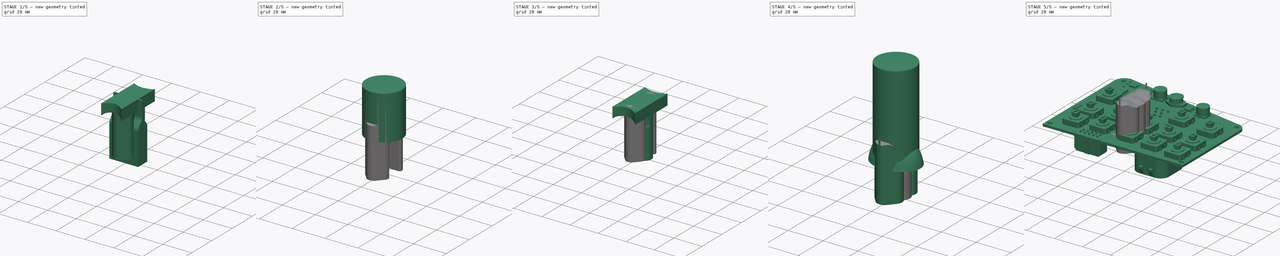
[diagram: build sequence overview — one tinted view per stage of 5, left to right]
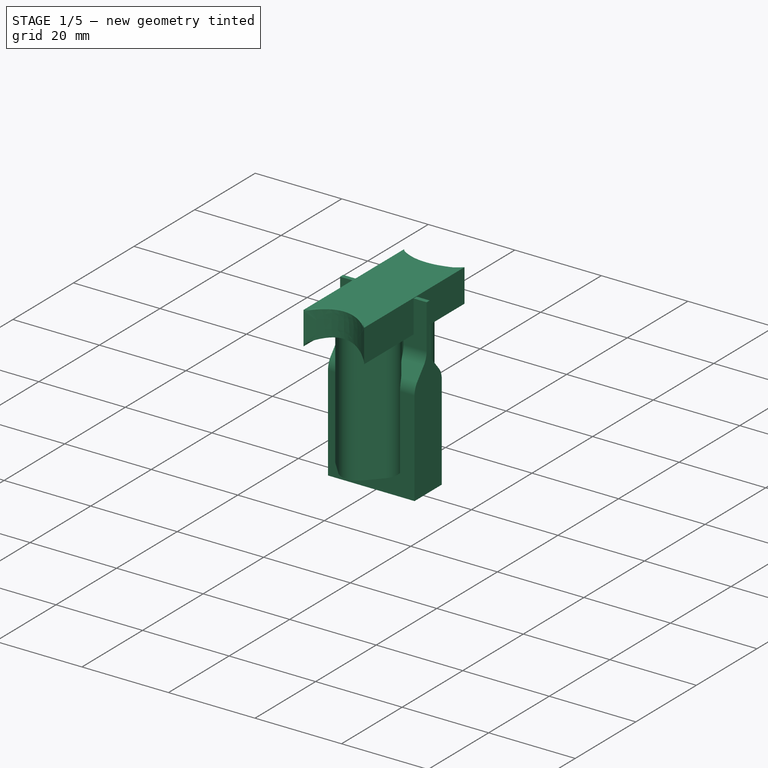
[diagram: stage 1 of 5 — iso view after this stage's code; geometry added in this stage tinted green]
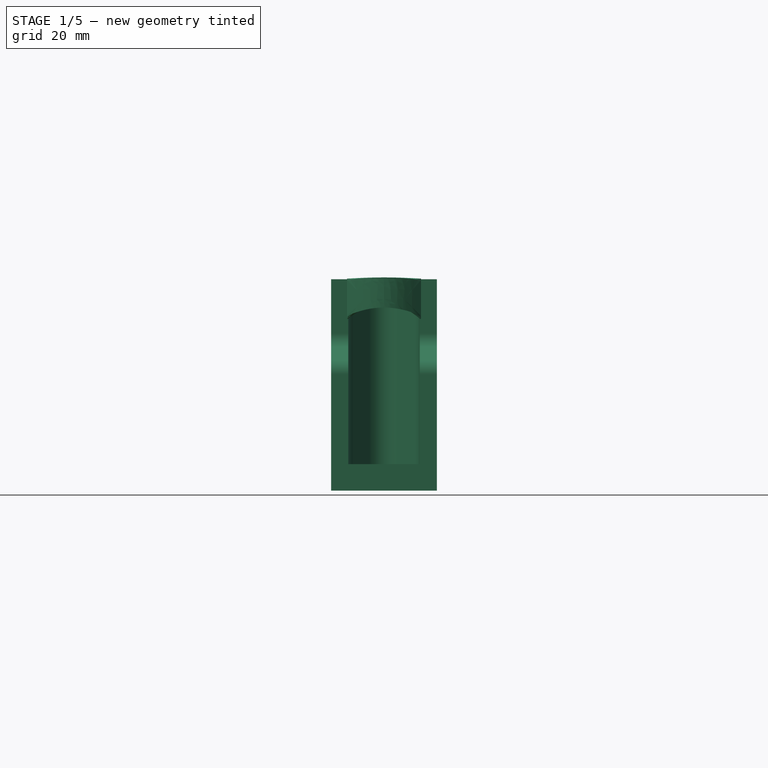
[diagram: stage 1 of 5 — front view after this stage's code; geometry added in this stage tinted green]
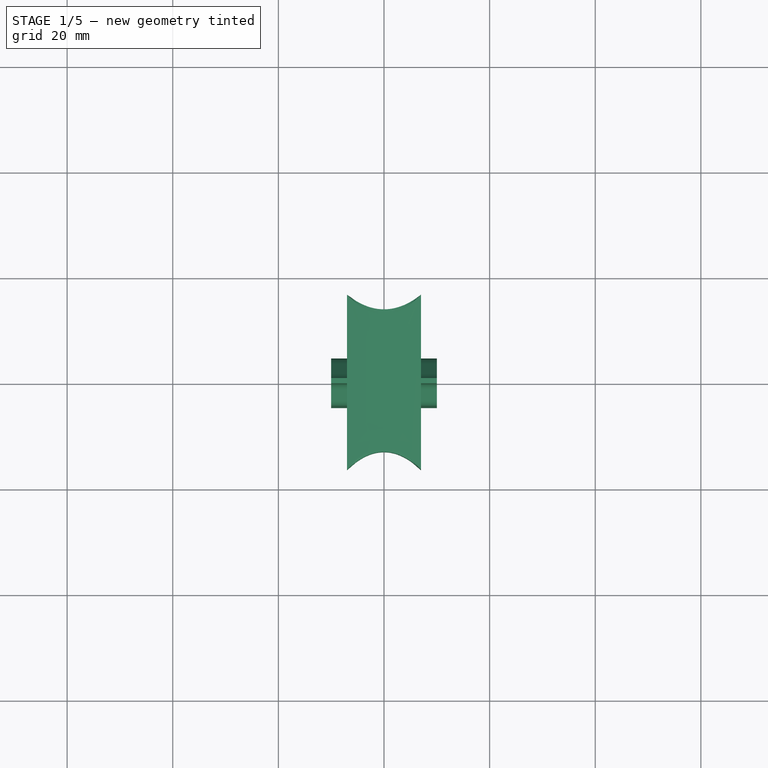
[diagram: stage 1 of 5 — top view after this stage's code; geometry added in this stage tinted green]
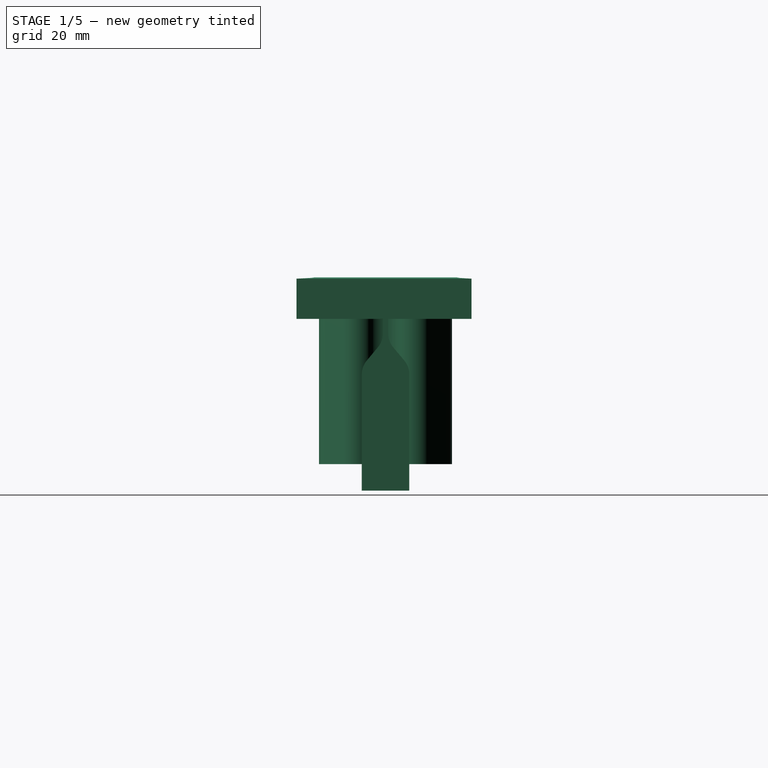
[diagram: stage 1 of 5 — right view after this stage's code; geometry added in this stage tinted green]
FCSTD DOCUMENT  (FreeCAD 0.16R6698 (Git))
Label: button_bases
License: All rights reserved
LicenseURL: http://en.wikipedia.org/wiki/All_rights_reserved
objects: Part::Feature×49, Sketcher::SketchObject×17, Part::Cut×7, PartDesign::Pad×5, Part::Loft×4, Part::Cylinder×2, Part::MultiFuse×1, PartDesign::Mirrored×1, PartDesign::Fillet×1
note: 92 computed .brp shape members not serialized (recipe doc carries the construction recipe); baked Part::Feature solids carry a one-line shape summary decoded from their .brp

FEATURE [Sketcher::SketchObject] Sketch002
  Placement = pos=(0,0,-15) rot=(0,0,1;0rad)
  sketch-geometry (18):
    g0: LineSegment StartX=-2.79667 StartY=11.3496 StartZ=0 EndX=-5.78505 EndY=8.05055 EndZ=0
    g1: LineSegment StartX=-5.94508 StartY=3.09694 StartZ=0 EndX=-5.49789 EndY=2.53417 EndZ=0
    g2: LineSegment StartX=-5.49789 StartY=-2.53417 StartZ=0 EndX=-5.94508 EndY=-3.09694 EndZ=0
    g3: LineSegment StartX=-5.78505 StartY=-8.05055 StartZ=0 EndX=-2.79667 EndY=-11.3496 EndZ=0
    g4: LineSegment StartX=2.79667 StartY=-11.3496 StartZ=0 EndX=5.78505 EndY=-8.05055 EndZ=0
    g5: LineSegment StartX=5.94508 StartY=-3.09694 StartZ=0 EndX=5.49789 EndY=-2.53417 EndZ=0
    g6: LineSegment StartX=5.49789 StartY=2.53417 StartZ=0 EndX=5.94508 EndY=3.09694 EndZ=0
    g7: LineSegment StartX=5.78505 StartY=8.05055 StartZ=0 EndX=2.79667 EndY=11.3496 EndZ=0
    g8: ArcOfCircle CenterX=0 CenterY=8.81623 CenterZ=0 NormalX=0 NormalY=0 NormalZ=1 Radius=3.77348 StartAngle=0.736032 EndAngle=2.40556
    g9: ArcOfCircle CenterX=-2.94671 CenterY=5.47947 CenterZ=0 NormalX=0 NormalY=0 NormalZ=1 Radius=3.8297 StartAngle=2.40556 EndAngle=3.81304
    g10: ArcOfCircle CenterX=-8.6871 CenterY=0 CenterZ=0 NormalX=0 NormalY=0 NormalZ=1 Radius=4.07346 StartAngle=5.61174 EndAngle=6.95463
    g11: ArcOfCircle CenterX=-2.94671 CenterY=-5.47947 CenterZ=0 NormalX=0 NormalY=0 NormalZ=1 Radius=3.8297 StartAngle=2.47015 EndAngle=3.87762
    g12: ArcOfCircle CenterX=0 CenterY=-8.81623 CenterZ=0 NormalX=0 NormalY=0 NormalZ=1 Radius=3.77348 StartAngle=3.87762 EndAngle=5.54715
    g13: ArcOfCircle CenterX=2.94671 CenterY=-5.47947 CenterZ=0 NormalX=0 NormalY=0 NormalZ=1 Radius=3.8297 StartAngle=5.54715 EndAngle=6.95463
    g14: ArcOfCircle CenterX=8.6871 CenterY=0 CenterZ=0 NormalX=0 NormalY=0 NormalZ=1 Radius=4.07346 StartAngle=2.47015 EndAngle=3.81304
    g15: ArcOfCircle CenterX=2.94671 CenterY=5.47947 CenterZ=0 NormalX=0 NormalY=0 NormalZ=1 Radius=3.8297 StartAngle=5.61174 EndAngle=7.01922
    g16: LineSegment [constr] StartX=-13.256 StartY=0 StartZ=0 EndX=12.7685 EndY=0 EndZ=0
    g17: LineSegment [constr] StartX=0 StartY=15.591 StartZ=0 EndX=0 EndY=-15.4292 EndZ=0
  constraints (32):
    c: Tangent(g7,g8) = -1.5708
    c: Tangent(g0,g8) = -1.5708
    c: Tangent(g0,g9) = -1.5708
    c: Tangent(g1,g9) = -1.5708
    c: Tangent(g1,g10) = 1.5708
    c: Tangent(g2,g10) = 1.5708
    c: Tangent(g2,g11) = -1.5708
    c: Tangent(g3,g11) = -1.5708
    c: Tangent(g3,g12) = -1.5708
    c: Tangent(g4,g12) = -1.5708
    c: Tangent(g4,g13) = -1.5708
    c: Tangent(g5,g13) = -1.5708
    c: Tangent(g5,g14) = 1.5708
    c: Tangent(g6,g14) = 1.5708
    c: Tangent(g6,g15) = -1.5708
    c: Tangent(g7,g15) = -1.5708
    c: Equal(g12,g8)
    c: Horizontal(g16)
    c: Vertical(g17)
    c: Symmetric(g12,g8,g16)
    c: PointOnObject(g8,g17)
    c: Symmetric(g11,g13,g17)
    c: Symmetric(g9,g15,g17)
    c: Equal(g9,g11)
    c: Equal(g11,g13)
    c: Equal(g13,g15)
    c: Symmetric(g9,g11,g16)
    c: Symmetric(g14,g10,g17)
    c: PointOnObject(g14,g16)
    c: Equal(g14,g10)
    c: PointOnObject(g17,g-2)
    c: PointOnObject(g16,g-1)
FEATURE [PartDesign::Pad] Pad001
  Length = 35
  Length2 = 100
  Placement = pos=(0,0,-15) rot=(0,0,1;0rad)
  Sketch = -> Sketch002
  Type = 0
FEATURE [Sketcher::SketchObject] Sketch003
  Placement = pos=(0,0,0) rot=(0.57735,0.57735,0.57735;2.0944rad)
  sketch-geometry (10):
    g0: LineSegment StartX=-13.5 StartY=14.6494 StartZ=0 EndX=-13.0769 EndY=14.8919 EndZ=0
    g1: ArcOfCircle CenterX=-9.09897 CenterY=7.95103 CenterZ=0 NormalX=0 NormalY=0 NormalZ=1 Radius=8 StartAngle=1.05514 EndAngle=2.09121
    g2: ArcOfCircle CenterX=0 CenterY=15.4378 CenterZ=0 NormalX=0 NormalY=0 NormalZ=1 Radius=3 StartAngle=4.19673 EndAngle=5.22805
    g3: ArcOfCircle CenterX=9.09897 CenterY=7.95103 CenterZ=0 NormalX=0 NormalY=0 NormalZ=1 Radius=8 StartAngle=1.05038 EndAngle=2.08646
    g4: LineSegment StartX=13.0769 StartY=14.8919 StartZ=0 EndX=13.5 EndY=14.6494 EndZ=0
    g5: LineSegment StartX=13.5 StartY=14.6494 StartZ=0 EndX=13.5 EndY=20.3547 EndZ=0
    g6: LineSegment StartX=13.5 StartY=20.3547 StartZ=0 EndX=-13.5 EndY=20.3547 EndZ=0
    g7: LineSegment StartX=-13.5 StartY=20.3547 StartZ=0 EndX=-13.5 EndY=14.6494 EndZ=0
    g8: LineSegment StartX=-5.15409 StartY=14.9108 StartZ=0 EndX=-1.47933 EndY=12.8279 EndZ=0
    g9: LineSegment StartX=1.47933 StartY=12.8279 StartZ=0 EndX=5.15409 EndY=14.9108 EndZ=0
  constraints (25):
    c: Coincident(g0,g1)
    c: Coincident(g3,g4)
    c: Coincident(g8,g1)
    c: Coincident(g8,g2)
    c: Coincident(g9,g2)
    c: Coincident(g9,g3)
    c: Tangent(g9,g3)
    c: Tangent(g2,g9)
    c: Tangent(g2,g8)
    c: Tangent(g8,g1)
    c: Symmetric(g2,g2,g-2)
    c: Tangent(g0,g1)
    c: Tangent(g3,g4)
    c: Symmetric(g0,g3,g-2)
    c: Coincident(g7,g0)
    c: Coincident(g6,g7)
    c: Horizontal(g6)
    c: Vertical(g7)
    c: Vertical(g5)
    c: Coincident(g5,g6)
    c: Coincident(g5,g4)
    c: Symmetric(g4,g0,g-2)
    c: Radius(g2) = 3
    c: DistanceX(g6,g6) = 27
    c: Radius(g3) = 8
FEATURE [Sketcher::SketchObject] Sketch004
  Placement = pos=(-7,0,0) rot=(0.57735,0.57735,0.57735;2.0944rad)
  sketch-geometry (4):
    g0: LineSegment StartX=-16.8584 StartY=20.1187 StartZ=0 EndX=16.2742 EndY=20.1187 EndZ=0
    g1: LineSegment StartX=16.2742 StartY=20.1187 StartZ=0 EndX=16.2742 EndY=12.5 EndZ=0
    g2: LineSegment StartX=16.2742 StartY=12.5 StartZ=0 EndX=-16.8584 EndY=12.5 EndZ=0
    g3: LineSegment StartX=-16.8584 StartY=12.5 StartZ=0 EndX=-16.8584 EndY=20.1187 EndZ=0
  constraints (11):
    c: Coincident(g0,g1)
    c: Coincident(g1,g2)
    c: Coincident(g2,g3)
    c: Coincident(g3,g0)
    c: Horizontal(g0)
    c: Horizontal(g2)
    c: Vertical(g1)
    c: Vertical(g3)
    c: DistanceX(g0,g0) = 33.1326
    c: DistanceY(g1,g1) = 7.61872
    c: DistanceY(g-1,g2) = 12.5
FEATURE [Sketcher::SketchObject] Sketch005
  Placement = pos=(7,0,0) rot=(0.57735,0.57735,0.57735;2.0944rad)
  sketch-geometry (4):
    g0: LineSegment StartX=-16.8584 StartY=20.1187 StartZ=0 EndX=16.2742 EndY=20.1187 EndZ=0
    g1: LineSegment StartX=16.2742 StartY=20.1187 StartZ=0 EndX=16.2742 EndY=12.5 EndZ=0
    g2: LineSegment StartX=16.2742 StartY=12.5 StartZ=0 EndX=-16.8584 EndY=12.5 EndZ=0
    g3: LineSegment StartX=-16.8584 StartY=12.5 StartZ=0 EndX=-16.8584 EndY=20.1187 EndZ=0
  constraints (11):
    c: Coincident(g0,g1)
    c: Coincident(g1,g2)
    c: Coincident(g2,g3)
    c: Coincident(g3,g0)
    c: Horizontal(g0)
    c: Horizontal(g2)
    c: Vertical(g1)
    c: Vertical(g3)
    c: DistanceX(g0,g0) = 33.1326
    c: DistanceY(g1,g1) = 7.61872
    c: DistanceY(g-1,g2) = 12.5
FEATURE [Part::Loft] Loft
  Closed = false
  Ruled = false
  Sections = -> [Sketch004,Sketch003,Sketch005]
  Solid = true
FEATURE [Sketcher::SketchObject] Sketch
  Placement = pos=(0,0,0) rot=(0.57735,0.57735,0.57735;2.0944rad)
  sketch-geometry (8):
    g0: LineSegment StartX=0 StartY=20 StartZ=0 EndX=-0.5 EndY=20 EndZ=0
    g1: LineSegment StartX=-0.5 StartY=20 StartZ=0 EndX=-0.5 EndY=9.75 EndZ=0
    g2: ArcOfCircle CenterX=-4.59783 CenterY=9.75 CenterZ=0 NormalX=0 NormalY=0 NormalZ=1 Radius=4.09783 StartAngle=5.58505 EndAngle=6.28319
    g3: LineSegment StartX=-1.45871 StartY=7.11597 StartZ=0 EndX=-3.54129 EndY=4.63404 EndZ=0
    g4: ArcOfCircle CenterX=-0.402172 CenterY=2.00001 CenterZ=0 NormalX=0 NormalY=0 NormalZ=1 Radius=4.09783 StartAngle=2.44346 EndAngle=3.1416
    g5: LineSegment StartX=-4.5 StartY=2 StartZ=0 EndX=-4.5 EndY=-20 EndZ=0
    g6: LineSegment StartX=-4.5 StartY=-20 StartZ=0 EndX=0 EndY=-20 EndZ=0
    g7: LineSegment StartX=0 StartY=-20 StartZ=0 EndX=0 EndY=20 EndZ=0
  constraints (24):
    c: PointOnObject(g0,g-2)
    c: Horizontal(g0)
    c: Coincident(g0,g1)
    c: Vertical(g1)
    c: Tangent(g1,g2) = 1.5708
    c: Coincident(g2,g3)
    c: Tangent(g3,g4) = -1.5708
    c: Coincident(g4,g5)
    c: Vertical(g5)
    c: Coincident(g5,g6)
    c: DistanceX(g6,g6) = 4.5
    c: DistanceX(g0,g0) = 0.5
    c: Tangent(g3,g2)
    c: Equal(g4,g2)
    c: Angle(g3) = -2.26893
    c: Tangent(g4,g5)
    c: DistanceY(g4,g1) = 7.75
    c: Horizontal(g6)
    c: DistanceY(g-1,g0) = 20
    c: DistanceY(g-1,g4) = 2
    c: Coincident(g7,g6)
    c: Coincident(g7,g0)
    c: Vertical(g7)
    c: DistanceY(g7,g7) = 40
FEATURE [PartDesign::Pad] Pad
  Length = 20
  Length2 = 100
  Midplane = true
  Placement = pos=(0,0,0) rot=(0.57735,0.57735,0.57735;2.0944rad)
  Sketch = -> Sketch
  Type = 0
FEATURE [PartDesign::Mirrored] Mirrored
  MirrorPlane = -> Sketch [V_Axis]
  Originals = -> [Pad]
  Placement = pos=(0,0,0) rot=(0.57735,0.57735,0.57735;2.0944rad)
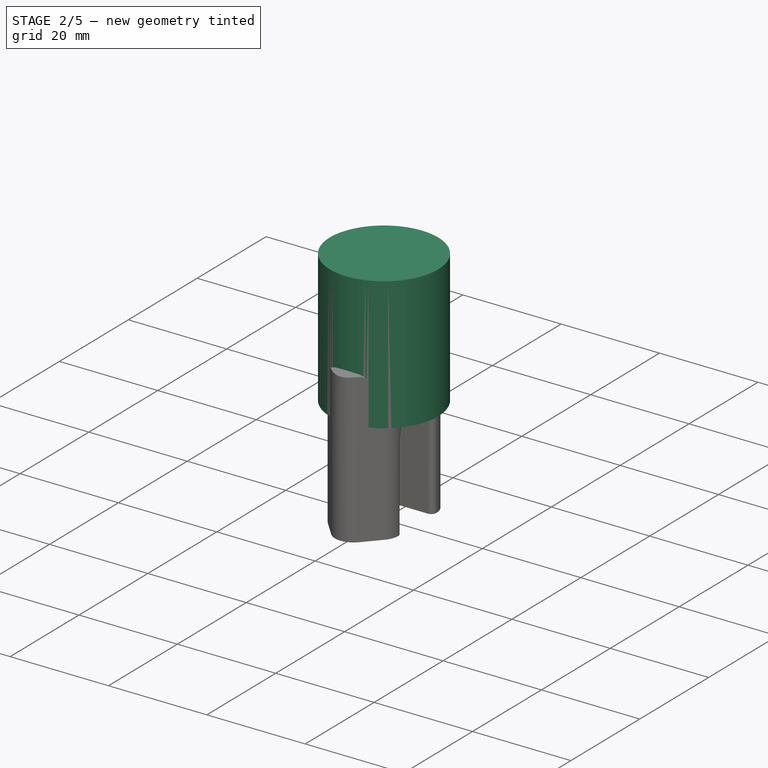
[diagram: stage 2 of 5 — iso view after this stage's code; geometry added in this stage tinted green]
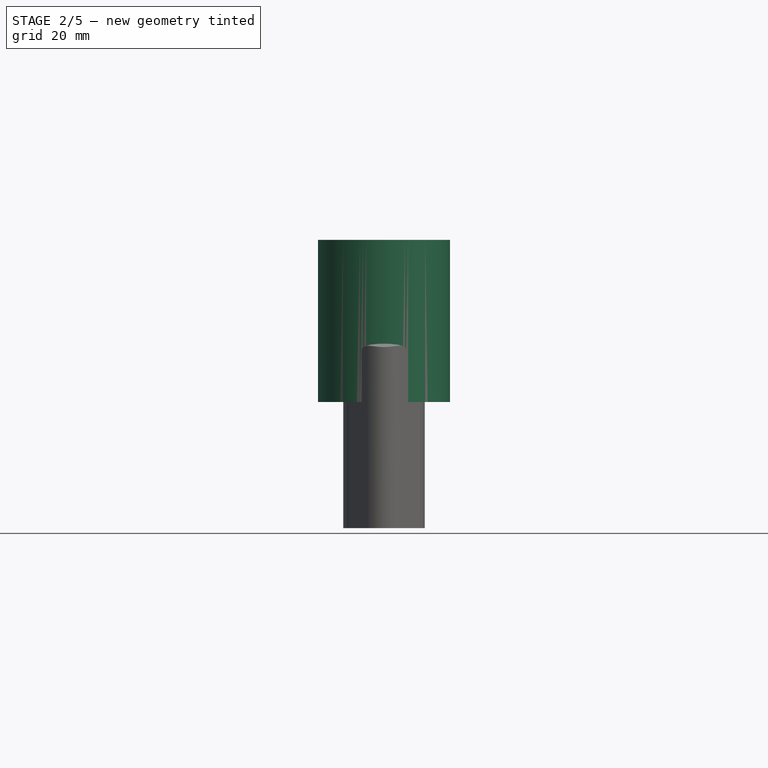
[diagram: stage 2 of 5 — front view after this stage's code; geometry added in this stage tinted green]
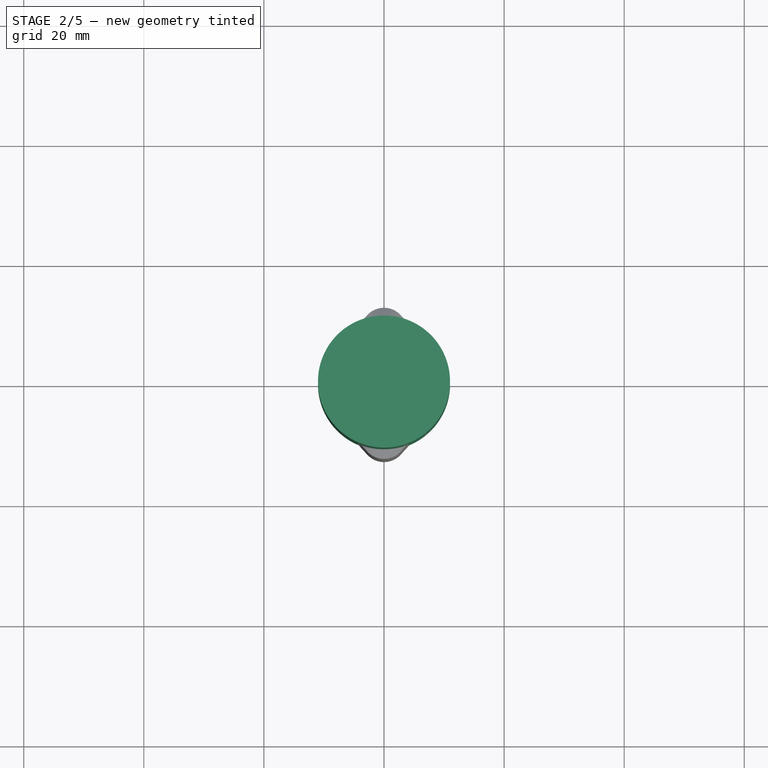
[diagram: stage 2 of 5 — top view after this stage's code; geometry added in this stage tinted green]
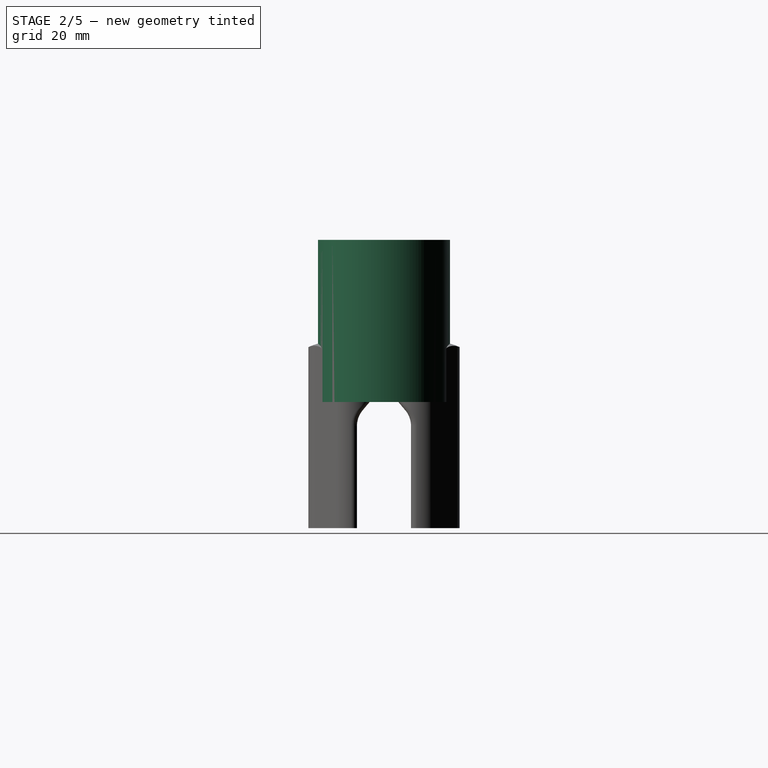
[diagram: stage 2 of 5 — right view after this stage's code; geometry added in this stage tinted green]
FEATURE [Part::Cut] Cut  label="sw_base"
  Base = -> Pad001
  Tool = -> Loft
FEATURE [Part::Cylinder] Cylinder001
  Angle = 360
  Height = 27
  Placement = pos=(0,0,6) rot=(0,0,1;0rad)
  Radius = 11
FEATURE [Part::Cut] Cut007
  Base = -> Cut
  Tool = -> Mirrored
FEATURE [PartDesign::Fillet] Fillet
  Base = -> Cut007 [Edge98,Edge25,Edge29,Edge101]
  Radius = 1
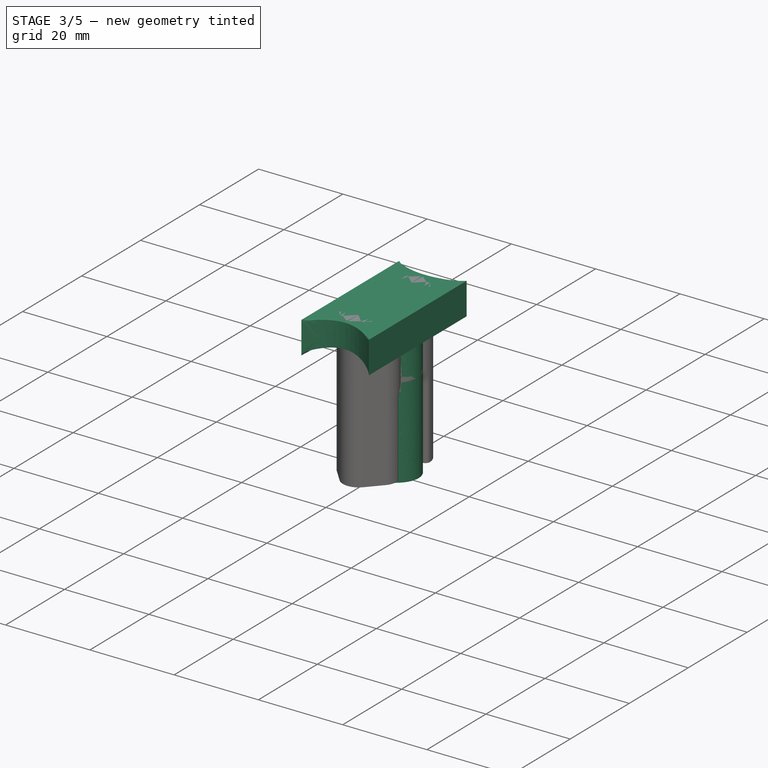
[diagram: stage 3 of 5 — iso view after this stage's code; geometry added in this stage tinted green]
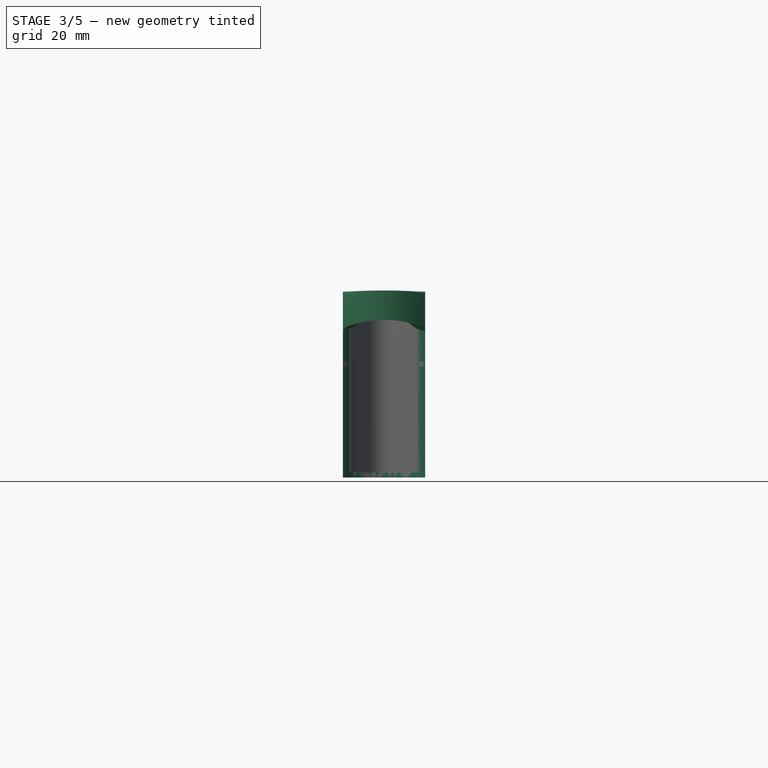
[diagram: stage 3 of 5 — front view after this stage's code; geometry added in this stage tinted green]
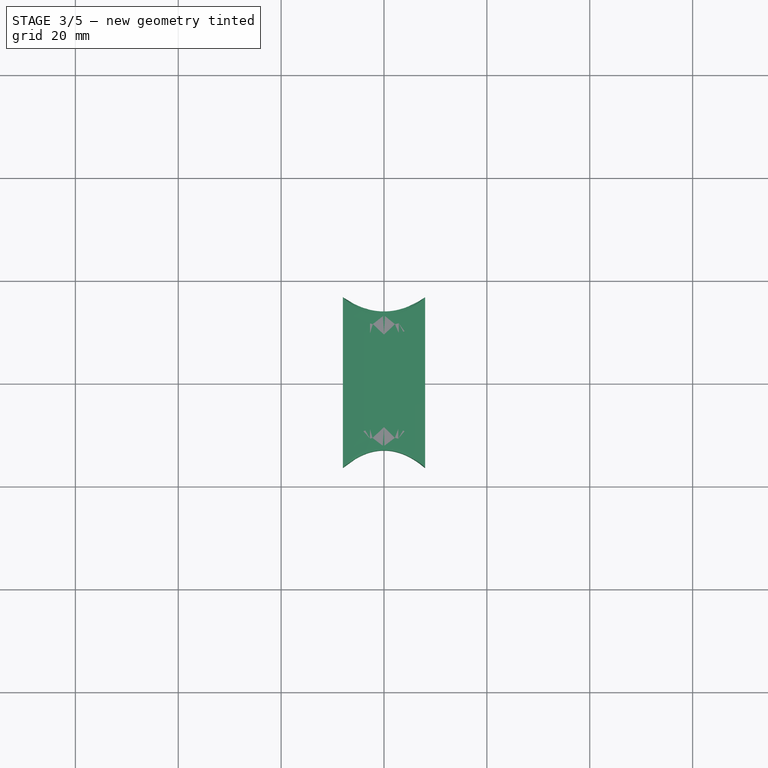
[diagram: stage 3 of 5 — top view after this stage's code; geometry added in this stage tinted green]
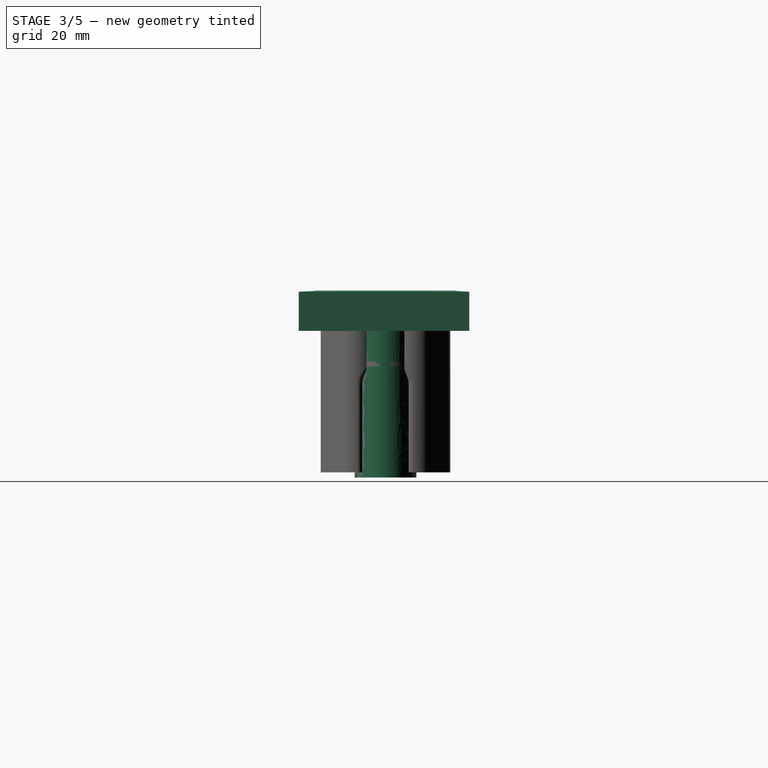
[diagram: stage 3 of 5 — right view after this stage's code; geometry added in this stage tinted green]
FEATURE [Sketcher::SketchObject] Sketch011
  Placement = pos=(0,0,0) rot=(0.57735,0.57735,0.57735;2.0944rad)
  sketch-geometry (10):
    g0: LineSegment StartX=-13.5 StartY=14.6494 StartZ=0 EndX=-13.0769 EndY=14.8919 EndZ=0
    g1: ArcOfCircle CenterX=-9.09897 CenterY=7.95103 CenterZ=0 NormalX=0 NormalY=0 NormalZ=1 Radius=8 StartAngle=1.05514 EndAngle=2.09121
    g2: ArcOfCircle CenterX=0 CenterY=15.4378 CenterZ=0 NormalX=0 NormalY=0 NormalZ=1 Radius=3 StartAngle=4.19673 EndAngle=5.22805
    g3: ArcOfCircle CenterX=9.09897 CenterY=7.95103 CenterZ=0 NormalX=0 NormalY=0 NormalZ=1 Radius=8 StartAngle=1.05038 EndAngle=2.08646
    g4: LineSegment StartX=13.0769 StartY=14.8919 StartZ=0 EndX=13.5 EndY=14.6494 EndZ=0
    g5: LineSegment StartX=13.5 StartY=14.6494 StartZ=0 EndX=13.5 EndY=20.3547 EndZ=0
    g6: LineSegment StartX=13.5 StartY=20.3547 StartZ=0 EndX=-13.5 EndY=20.3547 EndZ=0
    g7: LineSegment StartX=-13.5 StartY=20.3547 StartZ=0 EndX=-13.5 EndY=14.6494 EndZ=0
    g8: LineSegment StartX=-5.15409 StartY=14.9108 StartZ=0 EndX=-1.47933 EndY=12.8279 EndZ=0
    g9: LineSegment StartX=1.47933 StartY=12.8279 StartZ=0 EndX=5.15409 EndY=14.9108 EndZ=0
  constraints (25):
    c: Coincident(g0,g1)
    c: Coincident(g3,g4)
    c: Coincident(g8,g1)
    c: Coincident(g8,g2)
    c: Coincident(g9,g2)
    c: Coincident(g9,g3)
    c: Tangent(g9,g3)
    c: Tangent(g2,g9)
    c: Tangent(g2,g8)
    c: Tangent(g8,g1)
    c: Symmetric(g2,g2,g-2)
    c: Tangent(g0,g1)
    c: Tangent(g3,g4)
    c: Symmetric(g0,g3,g-2)
    c: Coincident(g7,g0)
    c: Coincident(g6,g7)
    c: Horizontal(g6)
    c: Vertical(g7)
    c: Vertical(g5)
    c: Coincident(g5,g6)
    c: Coincident(g5,g4)
    c: Symmetric(g4,g0,g-2)
    c: Radius(g2) = 3
    c: DistanceX(g6,g6) = 27
    c: Radius(g3) = 8
FEATURE [Sketcher::SketchObject] Sketch012
  Placement = pos=(-8,0,0) rot=(0.57735,0.57735,0.57735;2.0944rad)
  sketch-geometry (4):
    g0: LineSegment StartX=-16.8584 StartY=20.1187 StartZ=0 EndX=16.2742 EndY=20.1187 EndZ=0
    g1: LineSegment StartX=16.2742 StartY=20.1187 StartZ=0 EndX=16.2742 EndY=12.5 EndZ=0
    g2: LineSegment StartX=16.2742 StartY=12.5 StartZ=0 EndX=-16.8584 EndY=12.5 EndZ=0
    g3: LineSegment StartX=-16.8584 StartY=12.5 StartZ=0 EndX=-16.8584 EndY=20.1187 EndZ=0
  constraints (11):
    c: Coincident(g0,g1)
    c: Coincident(g1,g2)
    c: Coincident(g2,g3)
    c: Coincident(g3,g0)
    c: Horizontal(g0)
    c: Horizontal(g2)
    c: Vertical(g1)
    c: Vertical(g3)
    c: DistanceX(g0,g0) = 33.1326
    c: DistanceY(g1,g1) = 7.61872
    c: DistanceY(g-1,g2) = 12.5
FEATURE [Sketcher::SketchObject] Sketch013
  Placement = pos=(8,0,0) rot=(0.57735,0.57735,0.57735;2.0944rad)
  sketch-geometry (4):
    g0: LineSegment StartX=-16.8584 StartY=20.1187 StartZ=0 EndX=16.2742 EndY=20.1187 EndZ=0
    g1: LineSegment StartX=16.2742 StartY=20.1187 StartZ=0 EndX=16.2742 EndY=12.5 EndZ=0
    g2: LineSegment StartX=16.2742 StartY=12.5 StartZ=0 EndX=-16.8584 EndY=12.5 EndZ=0
    g3: LineSegment StartX=-16.8584 StartY=12.5 StartZ=0 EndX=-16.8584 EndY=20.1187 EndZ=0
  constraints (11):
    c: Coincident(g0,g1)
    c: Coincident(g1,g2)
    c: Coincident(g2,g3)
    c: Coincident(g3,g0)
    c: Horizontal(g0)
    c: Horizontal(g2)
    c: Vertical(g1)
    c: Vertical(g3)
    c: DistanceX(g0,g0) = 33.1326
    c: DistanceY(g1,g1) = 7.61872
    c: DistanceY(g-1,g2) = 12.5
FEATURE [Part::Loft] Loft002
  Closed = false
  Ruled = false
  Sections = -> [Sketch012,Sketch011,Sketch013]
  Solid = true
FEATURE [Sketcher::SketchObject] Sketch014
  Placement = pos=(0,0,-16) rot=(0,0,1;0rad)
  sketch-geometry (5):
    g0: Ellipse CenterX=0 CenterY=0 CenterZ=0 NormalX=0 NormalY=0 NormalZ=1 MajorRadius=8 MinorRadius=6 AngleXU=0
    g1: LineSegment [constr] StartX=8 StartY=0 StartZ=0 EndX=-8 EndY=0 EndZ=0
    g2: LineSegment [constr] StartX=0 StartY=6 StartZ=0 EndX=0 EndY=-6 EndZ=0
    g3: GeomPoint [constr] X=5.2915 Y=0 Z=0
    g4: GeomPoint [constr] X=-5.2915 Y=0 Z=0
  constraints (5):
    c: InternalAlignment(g1-g4 -> g0) x4
    c: Coincident(g0,g-1)
    c: PointOnObject(g1,g-1)
    c: DistanceX(g1,g1) = 16
    c: DistanceY(g2,g2) = 12
FEATURE [PartDesign::Pad] Pad004
  Length = 40
  Length2 = 100
  Placement = pos=(0,0,-16) rot=(0,0,1;0rad)
  Sketch = -> Sketch014
  Type = 0
FEATURE [Sketcher::SketchObject] Sketch015
  Placement = pos=(0,0,15.2) rot=(0,0,1;0rad)
  sketch-geometry (5):
    g0: Ellipse CenterX=0 CenterY=0 CenterZ=0 NormalX=0 NormalY=0 NormalZ=1 MajorRadius=0.375 MinorRadius=0.25 AngleXU=0
    g1: LineSegment [constr] StartX=0.375 StartY=0 StartZ=0 EndX=-0.375 EndY=0 EndZ=0
    g2: LineSegment [constr] StartX=0 StartY=0.25 StartZ=0 EndX=0 EndY=-0.25 EndZ=0
    g3: GeomPoint [constr] X=0.279508 Y=0 Z=0
    g4: GeomPoint [constr] X=-0.279508 Y=0 Z=0
  constraints (5):
    c: InternalAlignment(g1-g4 -> g0) x4
    c: Coincident(g0,g-1)
    c: PointOnObject(g1,g-1)
    c: DistanceX(g1,g1) = 0.75
    c: DistanceY(g2,g2) = 0.5
FEATURE [Sketcher::SketchObject] Sketch016
  Placement = pos=(0,0,12.2) rot=(0,0,1;0rad)
  sketch-geometry (5):
    g0: Ellipse CenterX=0 CenterY=0 CenterZ=0 NormalX=0 NormalY=0 NormalZ=1 MajorRadius=9 MinorRadius=6 AngleXU=0
    g1: LineSegment [constr] StartX=9 StartY=0 StartZ=0 EndX=-9 EndY=0 EndZ=0
    g2: LineSegment [constr] StartX=0 StartY=6 StartZ=0 EndX=0 EndY=-6 EndZ=0
    g3: GeomPoint [constr] X=6.7082 Y=0 Z=0
    g4: GeomPoint [constr] X=-6.7082 Y=0 Z=0
  constraints (5):
    c: InternalAlignment(g1-g4 -> g0) x4
    c: Coincident(g0,g-1)
    c: PointOnObject(g1,g-1)
    c: DistanceX(g1,g1) = 18
    c: DistanceY(g2,g2) = 12
FEATURE [Sketcher::SketchObject] Sketch017
  Placement = pos=(0,0,1.2) rot=(0,0,1;0rad)
  sketch-geometry (5):
    g0: Ellipse CenterX=0 CenterY=0 CenterZ=0 NormalX=0 NormalY=0 NormalZ=1 MajorRadius=14 MinorRadius=11 AngleXU=0
    g1: LineSegment [constr] StartX=14 StartY=0 StartZ=0 EndX=-14 EndY=0 EndZ=0
    g2: LineSegment [constr] StartX=0 StartY=11 StartZ=0 EndX=0 EndY=-11 EndZ=0
    g3: GeomPoint [constr] X=8.66025 Y=0 Z=0
    g4: GeomPoint [constr] X=-8.66025 Y=0 Z=0
  constraints (5):
    c: InternalAlignment(g1-g4 -> g0) x4
    c: Coincident(g0,g-1)
    c: PointOnObject(g1,g-1)
    c: DistanceX(g1,g1) = 28
    c: DistanceY(g2,g2) = 22
FEATURE [Part::Loft] Loft003
  Closed = false
  Ruled = false
  Sections = -> [Sketch017,Sketch016,Sketch015]
  Solid = true
FEATURE [Part::Cut] Cut005  label="button_cutter001"
  Base = -> Cylinder001
  Tool = -> Loft003
FEATURE [Part::Cut] Cut006  label="but_hole_base"
  Base = -> Pad004
  Tool = -> Cut005
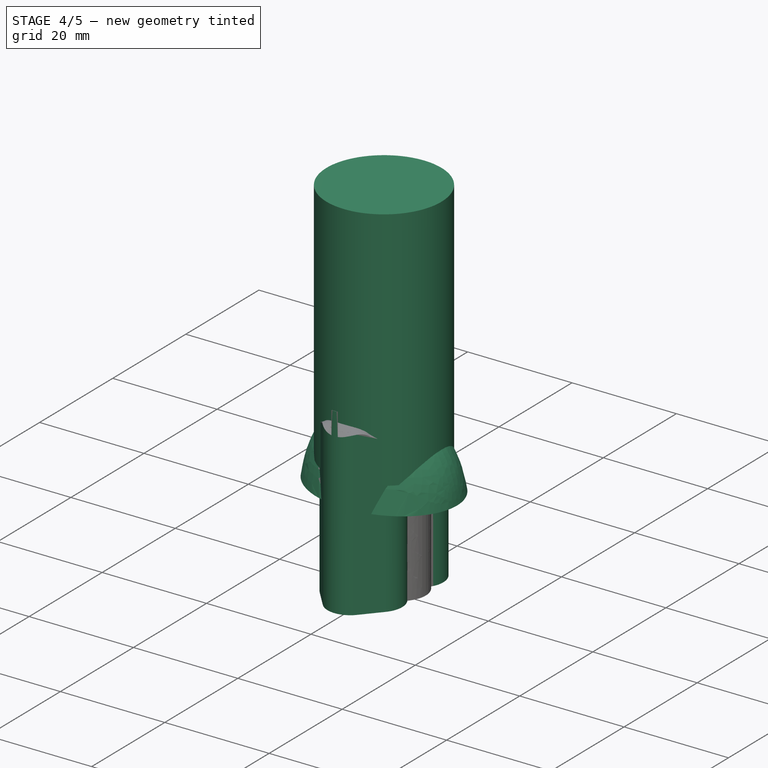
[diagram: stage 4 of 5 — iso view after this stage's code; geometry added in this stage tinted green]
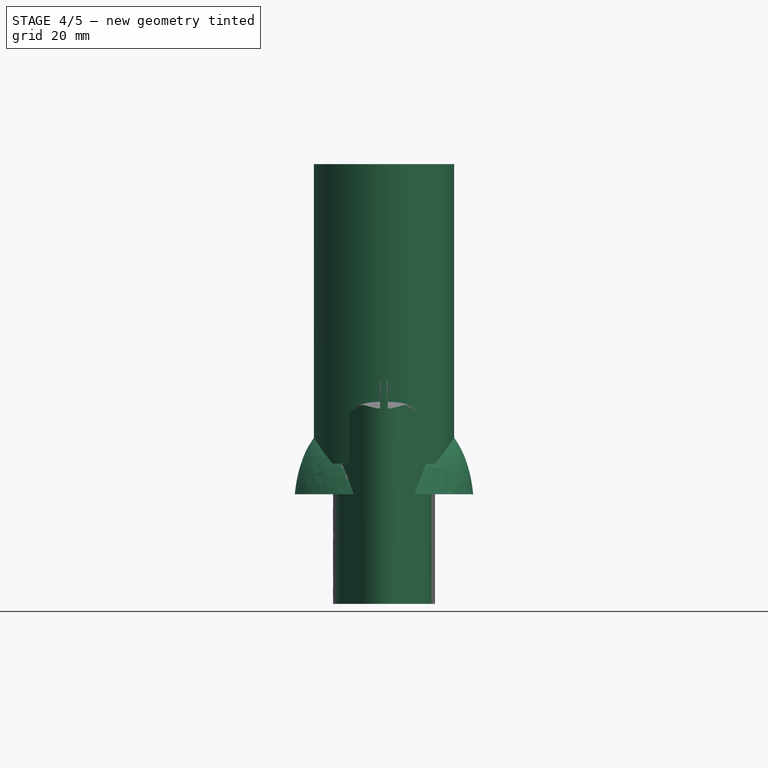
[diagram: stage 4 of 5 — front view after this stage's code; geometry added in this stage tinted green]
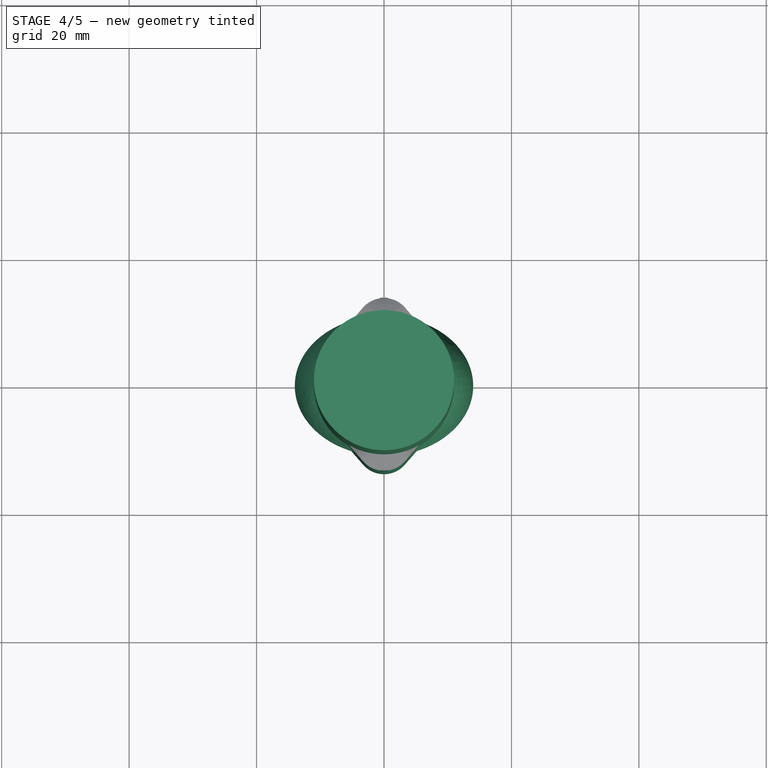
[diagram: stage 4 of 5 — top view after this stage's code; geometry added in this stage tinted green]
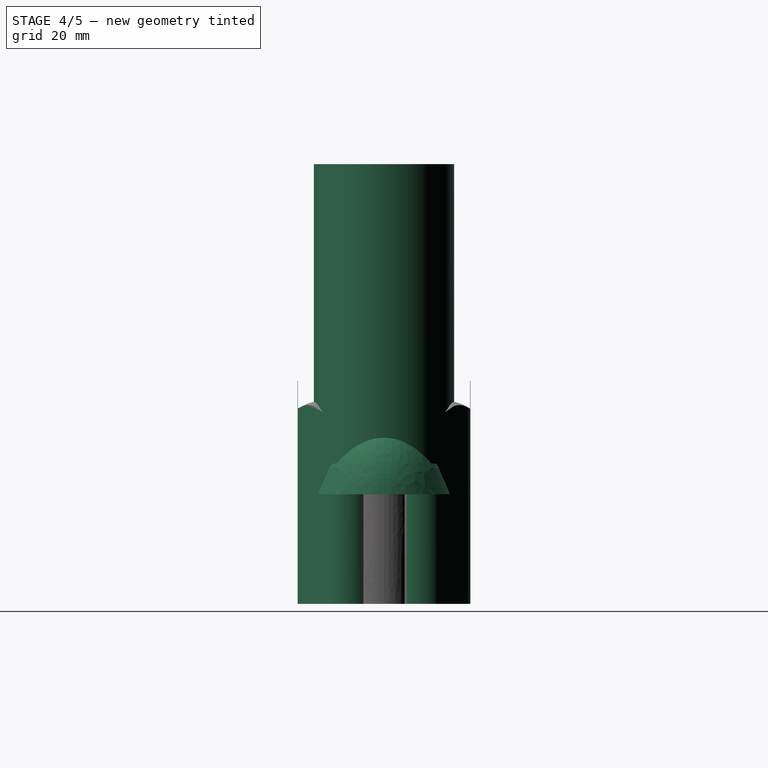
[diagram: stage 4 of 5 — right view after this stage's code; geometry added in this stage tinted green]
FEATURE [Sketcher::SketchObject] Sketch007
  Placement = pos=(0,0,15.2) rot=(0,0,1;0rad)
  sketch-geometry (5):
    g0: Ellipse CenterX=0 CenterY=0 CenterZ=0 NormalX=0 NormalY=0 NormalZ=1 MajorRadius=0.375 MinorRadius=0.25 AngleXU=0
    g1: LineSegment [constr] StartX=0.375 StartY=0 StartZ=0 EndX=-0.375 EndY=0 EndZ=0
    g2: LineSegment [constr] StartX=0 StartY=0.25 StartZ=0 EndX=0 EndY=-0.25 EndZ=0
    g3: GeomPoint [constr] X=0.279508 Y=0 Z=0
    g4: GeomPoint [constr] X=-0.279508 Y=0 Z=0
  constraints (5):
    c: InternalAlignment(g1-g4 -> g0) x4
    c: Coincident(g0,g-1)
    c: PointOnObject(g1,g-1)
    c: DistanceX(g1,g1) = 0.75
    c: DistanceY(g2,g2) = 0.5
FEATURE [Sketcher::SketchObject] Sketch008
  Placement = pos=(0,0,12.2) rot=(0,0,1;0rad)
  sketch-geometry (5):
    g0: Ellipse CenterX=0 CenterY=0 CenterZ=0 NormalX=0 NormalY=0 NormalZ=1 MajorRadius=9 MinorRadius=6 AngleXU=0
    g1: LineSegment [constr] StartX=9 StartY=0 StartZ=0 EndX=-9 EndY=0 EndZ=0
    g2: LineSegment [constr] StartX=0 StartY=6 StartZ=0 EndX=0 EndY=-6 EndZ=0
    g3: GeomPoint [constr] X=6.7082 Y=0 Z=0
    g4: GeomPoint [constr] X=-6.7082 Y=0 Z=0
  constraints (5):
    c: InternalAlignment(g1-g4 -> g0) x4
    c: Coincident(g0,g-1)
    c: PointOnObject(g1,g-1)
    c: DistanceX(g1,g1) = 18
    c: DistanceY(g2,g2) = 12
FEATURE [Sketcher::SketchObject] Sketch009
  Placement = pos=(0,0,1.2) rot=(0,0,1;0rad)
  sketch-geometry (5):
    g0: Ellipse CenterX=0 CenterY=0 CenterZ=0 NormalX=0 NormalY=0 NormalZ=1 MajorRadius=14 MinorRadius=11 AngleXU=0
    g1: LineSegment [constr] StartX=14 StartY=0 StartZ=0 EndX=-14 EndY=0 EndZ=0
    g2: LineSegment [constr] StartX=0 StartY=11 StartZ=0 EndX=0 EndY=-11 EndZ=0
    g3: GeomPoint [constr] X=8.66025 Y=0 Z=0
    g4: GeomPoint [constr] X=-8.66025 Y=0 Z=0
  constraints (5):
    c: InternalAlignment(g1-g4 -> g0) x4
    c: Coincident(g0,g-1)
    c: PointOnObject(g1,g-1)
    c: DistanceX(g1,g1) = 28
    c: DistanceY(g2,g2) = 22
FEATURE [Part::Loft] Loft001
  Closed = false
  Ruled = false
  Sections = -> [Sketch009,Sketch008,Sketch007]
  Solid = true
FEATURE [Part::Cylinder] Cylinder
  Angle = 360
  Height = 47
  Placement = pos=(0,0,6) rot=(0,0,1;0rad)
  Radius = 11
FEATURE [Sketcher::SketchObject] Sketch010
  Placement = pos=(0,0,-16) rot=(0,0,1;0rad)
  sketch-geometry (18):
    g0: LineSegment StartX=-3.28055 StartY=12.0668 StartZ=0 EndX=-6.34198 EndY=8.54347 EndZ=0
    g1: LineSegment StartX=-6.14489 StartY=2.49978 StartZ=0 EndX=-6.13228 EndY=2.48705 EndZ=0
    g2: LineSegment StartX=-6.13228 StartY=-2.48705 StartZ=0 EndX=-6.14489 EndY=-2.49978 EndZ=0
    g3: LineSegment StartX=-6.34198 StartY=-8.54347 StartZ=0 EndX=-3.28055 EndY=-12.0668 EndZ=0
    g4: LineSegment StartX=3.28055 StartY=-12.0668 StartZ=0 EndX=6.34198 EndY=-8.54347 EndZ=0
    g5: LineSegment StartX=6.14489 StartY=-2.49978 StartZ=0 EndX=6.13228 EndY=-2.48705 EndZ=0
    g6: LineSegment StartX=6.13228 StartY=2.48705 StartZ=0 EndX=6.14489 EndY=2.49978 EndZ=0
    g7: LineSegment StartX=6.34198 StartY=8.54347 StartZ=0 EndX=3.28055 EndY=12.0668 EndZ=0
    g8: ArcOfCircle CenterX=0 CenterY=9.21625 CenterZ=0 NormalX=0 NormalY=0 NormalZ=1 Radius=4.34597 StartAngle=0.715372 EndAngle=2.42622
    g9: ArcOfCircle CenterX=-2.98649 CenterY=5.62784 CenterZ=0 NormalX=0 NormalY=0 NormalZ=1 Radius=4.44525 StartAngle=2.42622 EndAngle=3.92216
    g10: ArcOfCircle CenterX=-8.64346 CenterY=0 CenterZ=0 NormalX=0 NormalY=0 NormalZ=1 Radius=3.53432 StartAngle=5.50261 EndAngle=7.06376
    g11: ArcOfCircle CenterX=-2.98649 CenterY=-5.62784 CenterZ=0 NormalX=0 NormalY=0 NormalZ=1 Radius=4.44525 StartAngle=2.36102 EndAngle=3.85696
    g12: ArcOfCircle CenterX=0 CenterY=-9.21625 CenterZ=0 NormalX=0 NormalY=0 NormalZ=1 Radius=4.34597 StartAngle=3.85696 EndAngle=5.56781
    g13: ArcOfCircle CenterX=2.98649 CenterY=-5.62784 CenterZ=0 NormalX=0 NormalY=0 NormalZ=1 Radius=4.44525 StartAngle=5.56781 EndAngle=7.06376
    g14: ArcOfCircle CenterX=8.64346 CenterY=0 CenterZ=0 NormalX=0 NormalY=0 NormalZ=1 Radius=3.53432 StartAngle=2.36102 EndAngle=3.92216
    g15: ArcOfCircle CenterX=2.98649 CenterY=5.62784 CenterZ=0 NormalX=0 NormalY=0 NormalZ=1 Radius=4.44525 StartAngle=5.50261 EndAngle=6.99856
    g16: LineSegment [constr] StartX=-13.256 StartY=0 StartZ=0 EndX=12.7685 EndY=0 EndZ=0
    g17: LineSegment [constr] StartX=0 StartY=15.591 StartZ=0 EndX=0 EndY=-15.4292 EndZ=0
  constraints (33):
    c: Tangent(g7,g8) = -1.5708
    c: Tangent(g0,g8) = -1.5708
    c: Tangent(g0,g9) = -1.5708
    c: Tangent(g1,g9) = -1.5708
    c: Tangent(g1,g10) = 1.5708
    c: Tangent(g2,g10) = 1.5708
    c: Tangent(g2,g11) = -1.5708
    c: Tangent(g3,g11) = -1.5708
    c: Tangent(g3,g12) = -1.5708
    c: Tangent(g4,g12) = -1.5708
    c: Tangent(g4,g13) = -1.5708
    c: Tangent(g5,g13) = -1.5708
    c: Tangent(g5,g14) = 1.5708
    c: Tangent(g6,g14) = 1.5708
    c: Tangent(g6,g15) = -1.5708
    c: Tangent(g7,g15) = -1.5708
    c: Equal(g12,g8)
    c: Horizontal(g16)
    c: Vertical(g17)
    c: Symmetric(g12,g8,g16)
    c: PointOnObject(g8,g17)
    c: Symmetric(g11,g13,g17)
    c: Symmetric(g9,g15,g17)
    c: Equal(g9,g11)
    c: Equal(g11,g13)
    c: Equal(g13,g15)
    c: Symmetric(g9,g11,g16)
    c: Symmetric(g14,g10,g17)
    c: PointOnObject(g14,g16)
    c: Equal(g14,g10)
    c: PointOnObject(g17,g-2)
    c: PointOnObject(g16,g-1)
    c: DistanceY(g12,g8) = 18.4325
FEATURE [PartDesign::Pad] Pad003
  Length = 35
  Length2 = 100
  Placement = pos=(0,0,-16) rot=(0,0,1;0rad)
  Sketch = -> Sketch010
  Type = 0
FEATURE [Part::Cut] Cut004  label="sw_hole_base"
  Base = -> Pad003
  Tool = -> Loft002
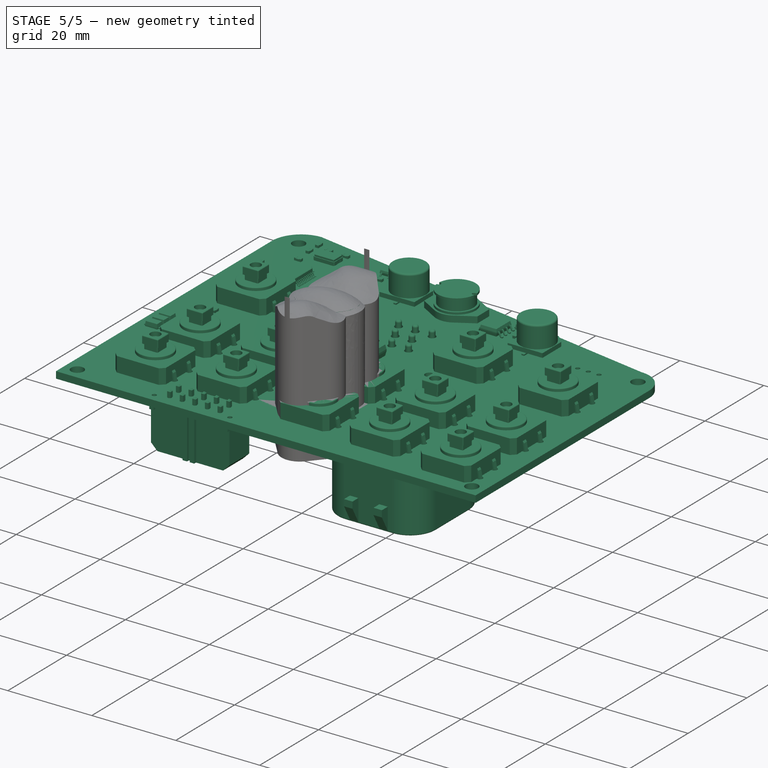
[diagram: stage 5 of 5 — iso view after this stage's code; geometry added in this stage tinted green]
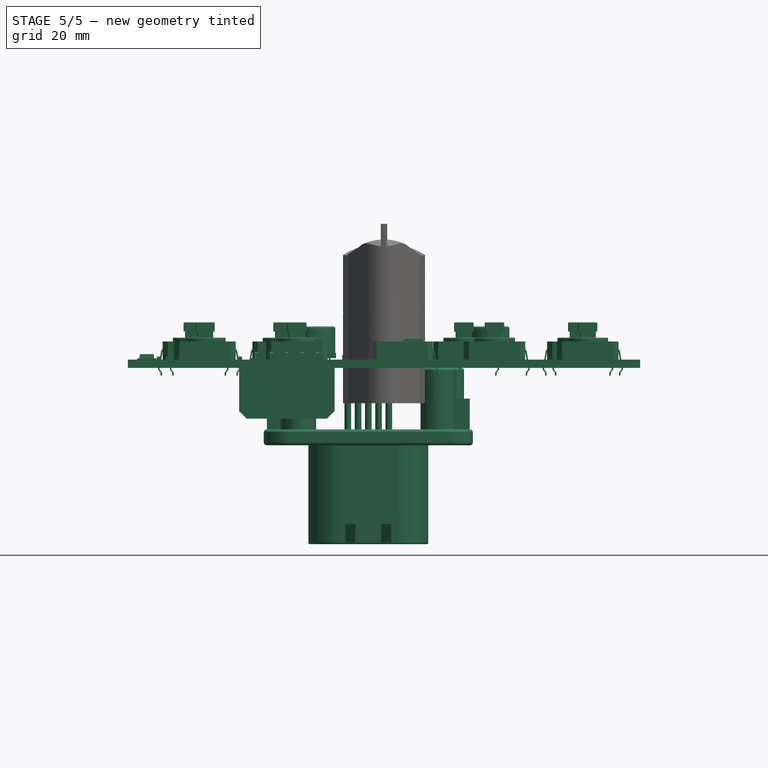
[diagram: stage 5 of 5 — front view after this stage's code; geometry added in this stage tinted green]
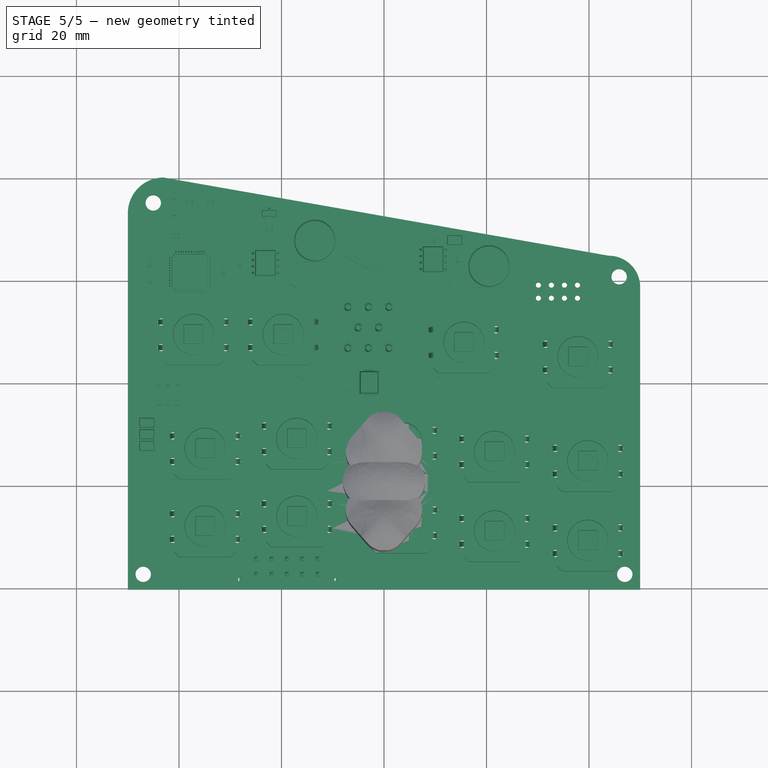
[diagram: stage 5 of 5 — top view after this stage's code; geometry added in this stage tinted green]
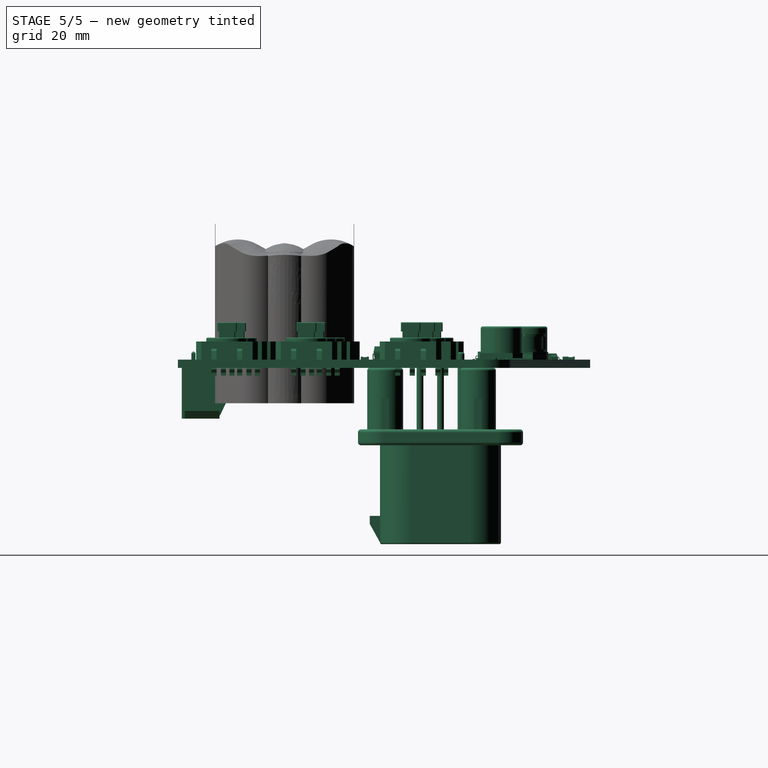
[diagram: stage 5 of 5 — right view after this stage's code; geometry added in this stage tinted green]
FEATURE [Part::Feature] Pcb
  Placement = pos=(-104.089,99.7331,0) rot=(0,0,1;0rad)
  shape: bbox 99.95 x 80.42 x 1.6 mm, 128 faces (baked)
FEATURE [Part::Feature] Shape  label="Fusion_"
  Placement = pos=(-18.9484,-35.7759,-1.6) rot=(0,1,0;3.14159rad)
  shape: bbox 18.65 x 8.87 x 13.09 mm, 258 faces (baked)
FEATURE [Part::Feature] Shape001  label="Fusion001_"
  Placement = pos=(3.5433,-27.1551,0) rot=(0,0,-1;1.5708rad)
  shape: bbox 13.8 x 12 x 10.42 mm, 87 faces (baked)
FEATURE [Part::Feature] Shape002  label="Fillet003_"
  Placement = pos=(14.605,24.1554,0) rot=(0,0,-1;1.5708rad)
  shape: bbox 0.849 x 1.6 x 0.6 mm, 50 faces (baked)
FEATURE [Part::Feature] Shape003  label="Pad002_"
  Placement = pos=(20.4724,22.8727,0) rot=(0,0,1;3.14159rad)
  shape: bbox 8.659 x 9.83 x 6.5 mm, 23 faces (baked)
FEATURE [Part::Feature] Shape004  label="Fillet003_001"
  Placement = pos=(-28.0797,23.3807,0) rot=(0,0,1;1.5708rad)
  shape: bbox 0.849 x 1.6 x 0.6 mm, 50 faces (baked)
FEATURE [Part::Feature] Shape005  label="Fillet003_002"
  Placement = pos=(-33.7947,35.2425,0) rot=(0,0,1;0rad)
  shape: bbox 1.6 x 0.849 x 0.6 mm, 50 faces (baked)
FEATURE [Part::Feature] Shape006  label="Fillet003_003"
  Placement = pos=(-37.846,35.2425,0) rot=(0,0,1;3.14159rad)
  shape: bbox 1.6 x 0.849 x 0.6 mm, 50 faces (baked)
FEATURE [Part::Feature] Shape007  label="Fillet003_004"
  Placement = pos=(9.398,27.8384,0) rot=(0,0,1;0rad)
  shape: bbox 1.6 x 0.849 x 0.6 mm, 50 faces (baked)
FEATURE [Part::Feature] Shape008  label="Fillet003_005"
  Placement = pos=(-40.5384,28.8163,0) rot=(0,0,1;3.14159rad)
  shape: bbox 1.6 x 0.849 x 0.6 mm, 50 faces (baked)
FEATURE [Part::Feature] Shape009  label="Fillet003_006"
  Placement = pos=(-31.2928,21.9075,0) rot=(0,0,-1;1.5708rad)
  shape: bbox 0.849 x 1.6 x 0.6 mm, 50 faces (baked)
FEATURE [Part::Feature] Shape010  label="Pad002_001"
  Placement = pos=(-13.5128,27.8511,0) rot=(0,0,1;3.14159rad)
  shape: bbox 8.659 x 9.83 x 6.5 mm, 23 faces (baked)
FEATURE [Part::Feature] Shape011  label="Fillet003_007"
  Placement = pos=(-22.2631,30.2006,0) rot=(0,0,1;0rad)
  shape: bbox 1.6 x 0.849 x 0.6 mm, 50 faces (baked)
FEATURE [Part::Feature] Shape012  label="Fusion001_001"
  Placement = pos=(-2.8956,0.1778,0) rot=(0,0,1;3.14159rad)
  shape: bbox 3.7 x 4.8 x 2.6 mm, 32 faces (baked)
FEATURE [Part::Feature] Shape013  label="Fillet003_008"
  Placement = pos=(-45.7708,20.1422,0) rot=(0,0,1;1.5708rad)
  shape: bbox 0.849 x 1.6 x 0.6 mm, 50 faces (baked)
FEATURE [Part::Feature] Shape014  label="Fusion_001"
  Placement = pos=(13.7795,27.9654,0) rot=(0,0,1;3.14159rad)
  shape: bbox 3.75 x 1.9 x 1.08 mm, 24 faces (baked)
FEATURE [Part::Feature] Shape015  label="Fillet003_009"
  Placement = pos=(-40.9956,36.4236,0) rot=(0,0,-1;1.5708rad)
  shape: bbox 0.849 x 1.6 x 0.6 mm, 50 faces (baked)
FEATURE [Part::Feature] Shape016  label="Fusion_002"
  Placement = pos=(-46.2788,-9.8933,0) rot=(0,0,1;3.14159rad)
  shape: bbox 3.75 x 1.9 x 1.08 mm, 24 faces (baked)
FEATURE [Part::Feature] Shape017  label="Fusion_003"
  Placement = pos=(-46.2788,-7.6581,0) rot=(0,0,1;3.14159rad)
  shape: bbox 3.75 x 1.9 x 1.08 mm, 24 faces (baked)
FEATURE [Part::Feature] Shape018  label="Fusion_004"
  Placement = pos=(-46.2788,-12.1793,0) rot=(0,0,1;3.14159rad)
  shape: bbox 3.75 x 1.9 x 1.08 mm, 24 faces (baked)
FEATURE [Part::Feature] Shape019  label="Fusion001_002"
  Placement = pos=(-3.0607,11.0236,-1.6) rot=(1,0,0;3.14159rad)
  shape: bbox 41.62 x 33.02 x 37.48 mm, 156 faces (baked)
FEATURE [Part::Feature] Shape020  label="Pocket001_"
  Placement = pos=(-1.6256,27.0383,0) rot=(0,0,1;3.14159rad)
  shape: bbox 12.7 x 10 x 5 mm, 26 faces (baked)
FEATURE [Part::Feature] Shape021  label="Fillet003_010"
  Placement = pos=(-45.7708,23.3807,0) rot=(0,0,1;1.5708rad)
  shape: bbox 0.849 x 1.6 x 0.6 mm, 50 faces (baked)
FEATURE [Part::Feature] Shape022  label="Fillet003_011"
  Placement = pos=(-40.9956,33.1851,0) rot=(0,0,-1;1.5708rad)
  shape: bbox 0.849 x 1.6 x 0.6 mm, 50 faces (baked)
FEATURE [Part::Feature] Shape023  label="Fillet003_012"
  Placement = pos=(-42.1513,0.0635,0) rot=(0,0,-1;1.5708rad)
  shape: bbox 0.849 x 1.6 x 0.6 mm, 50 faces (baked)
FEATURE [Part::Feature] Shape024  label="Fillet003_013"
  Placement = pos=(-43.9293,0.0635,0) rot=(0,0,-1;1.5708rad)
  shape: bbox 0.849 x 1.6 x 0.6 mm, 50 faces (baked)
FEATURE [Part::Feature] Shape025  label="Fillet003_014"
  Placement = pos=(-40.3352,0.1016,0) rot=(0,0,-1;1.5708rad)
  shape: bbox 0.849 x 1.6 x 0.6 mm, 50 faces (baked)
FEATURE [Part::Feature] Shape026  label="Fillet003_015"
  Placement = pos=(-42.164,-3.7465,0) rot=(0,0,1;1.5708rad)
  shape: bbox 0.849 x 1.6 x 0.6 mm, 50 faces (baked)
FEATURE [Part::Feature] Shape027  label="Fillet003_016"
  Placement = pos=(-43.942,-3.7465,0) rot=(0,0,1;1.5708rad)
  shape: bbox 0.849 x 1.6 x 0.6 mm, 50 faces (baked)
FEATURE [Part::Feature] Shape028  label="Fillet003_017"
  Placement = pos=(-40.3352,-3.7465,0) rot=(0,0,1;1.5708rad)
  shape: bbox 0.849 x 1.6 x 0.6 mm, 50 faces (baked)
FEATURE [Part::Feature] Shape029  label="Fusion001_003"
  Placement = pos=(-17.0053,-25.9334,0) rot=(0,0,-1;1.5708rad)
  shape: bbox 13.8 x 12 x 10.42 mm, 87 faces (baked)
FEATURE [Part::Feature] Shape030  label="Fusion001_004"
  Placement = pos=(-17.0307,-10.7594,0) rot=(0,0,-1;1.5708rad)
  shape: bbox 13.8 x 12 x 10.42 mm, 87 faces (baked)
FEATURE [Part::Feature] Shape031  label="Fusion001_005"
  Placement = pos=(-34.9123,-12.6975,0) rot=(0,0,-1;1.5708rad)
  shape: bbox 13.8 x 12 x 10.42 mm, 87 faces (baked)
FEATURE [Part::Feature] Shape032  label="Fusion001_006"
  Placement = pos=(39.7383,-30.6426,0) rot=(0,0,-1;1.5708rad)
  shape: bbox 13.8 x 12 x 10.42 mm, 87 faces (baked)
FEATURE [Part::Feature] Shape033  label="Fusion001_007"
  Placement = pos=(21.5519,-28.8138,0) rot=(0,0,-1;1.5708rad)
  shape: bbox 13.8 x 12 x 10.42 mm, 87 faces (baked)
FEATURE [Part::Feature] Shape034  label="Fusion001_008"
  Placement = pos=(39.7383,-15.1282,0) rot=(0,0,-1;1.5708rad)
  shape: bbox 13.8 x 12 x 10.42 mm, 87 faces (baked)
FEATURE [Part::Feature] Shape035  label="Fusion001_009"
  Placement = pos=(21.5519,-13.2994,0) rot=(0,0,-1;1.5708rad)
  shape: bbox 13.8 x 12 x 10.42 mm, 87 faces (baked)
FEATURE [Part::Feature] Shape036  label="Fusion001_010"
  Placement = pos=(3.5433,-11.6307,0) rot=(0,0,-1;1.5708rad)
  shape: bbox 13.8 x 12 x 10.42 mm, 87 faces (baked)
FEATURE [Part::Feature] Shape037  label="Fusion001_011"
  Placement = pos=(37.8333,5.1816,0) rot=(0,0,-1;1.5708rad)
  shape: bbox 13.8 x 12 x 10.42 mm, 87 faces (baked)
FEATURE [Part::Feature] Shape038  label="Fusion001_012"
  Placement = pos=(15.5829,8.01624,0) rot=(0,0,-1;1.5708rad)
  shape: bbox 13.8 x 12 x 10.42 mm, 87 faces (baked)
FEATURE [Part::Feature] Shape039  label="Fusion001_013"
  Placement = pos=(-37.1983,9.54024,0) rot=(0,0,-1;1.5708rad)
  shape: bbox 13.8 x 12 x 10.42 mm, 87 faces (baked)
FEATURE [Part::Feature] Shape040  label="Fusion001_014"
  Placement = pos=(-19.6723,9.54024,0) rot=(0,0,-1;1.5708rad)
  shape: bbox 13.8 x 12 x 10.42 mm, 87 faces (baked)
FEATURE [Part::Feature] Shape041  label="Fusion001_015"
  Placement = pos=(-23.1322,23.5045,0) rot=(0,0,1;0rad)
  shape: bbox 6.2 x 5 x 1.75 mm, 86 faces (baked)
FEATURE [Part::Feature] Shape042  label="Fusion003_"
  Placement = pos=(-37.8714,21.7856,0) rot=(0,0,1;3.14159rad)
  shape: bbox 9 x 9 x 1.6 mm, 650 faces (baked)
FEATURE [Part::Feature] Shape043  label="Fusion001_016"
  Placement = pos=(9.59145,24.2337,0) rot=(0,0,1;0rad)
  shape: bbox 6.2 x 5 x 1.75 mm, 86 faces (baked)
FEATURE [Part::Feature] Shape044  label="Fusion001_017"
  Placement = pos=(-22.3673,33.22,0) rot=(0,0,1;3.14159rad)
  shape: bbox 2.9 x 2.6 x 1 mm, 41 faces (baked)
FEATURE [Part::Feature] Shape045  label="Pad001_"
  Placement = pos=(-35.814,32.1945,0) rot=(0,0,1;3.14159rad)
  shape: bbox 5 x 3.2 x 1.2 mm, 27 faces (baked)
FEATURE [Part::Feature] Shape046  label="Pad001_001"
  Placement = pos=(-7.2644,0.4445,0) rot=(0,0,-1;1.5708rad)
  shape: bbox 1.8 x 3.5 x 0.9 mm, 16 faces (baked)
FEATURE [Part::Feature] Shape047  label="Fusion001_018"
  Placement = pos=(-34.9123,-27.879,0) rot=(0,0,-1;1.5708rad)
  shape: bbox 13.8 x 12 x 10.42 mm, 87 faces (baked)
FEATURE [Part::MultiFuse] Fusion  label="pcb"
  Placement = pos=(0,19.4,-7.5) rot=(0,0,1;0rad)
  Shapes = -> [Shape047,Shape025,Pcb,Shape002,Shape008,Shape007,Shape009,Shape013,Shape011,Shape010,Shape015,Shape012,Shape001,Shape,Shape006,Shape004,Shape003,Shape005,Shape014,Shape016,Shape017,Shape022,Shape018,Shape020,Shape019,Shape023,Shape024,Shape031,Shape021,Shape026,Shape027,Shape028,Shape029,Shape030,Shape032,Shape034,Shape033,Shape035,Shape036,Shape041,Shape037,Shape038,Shape039,Shape040,Shape046,+4 more]
FEATURE [Sketcher::SketchObject] Sketch006
  Placement = pos=(0,0,-16) rot=(0,0,1;0rad)
  sketch-geometry (5):
    g0: Ellipse CenterX=0 CenterY=0 CenterZ=0 NormalX=0 NormalY=0 NormalZ=1 MajorRadius=7 MinorRadius=5 AngleXU=0
    g1: LineSegment [constr] StartX=7 StartY=0 StartZ=0 EndX=-7 EndY=0 EndZ=0
    g2: LineSegment [constr] StartX=0 StartY=5 StartZ=0 EndX=0 EndY=-5 EndZ=0
    g3: GeomPoint [constr] X=4.89898 Y=0 Z=0
    g4: GeomPoint [constr] X=-4.89898 Y=0 Z=0
  constraints (5):
    c: InternalAlignment(g1-g4 -> g0) x4
    c: Coincident(g0,g-1)
    c: PointOnObject(g1,g-1)
    c: DistanceX(g1,g1) = 14
    c: DistanceY(g2,g2) = 10
FEATURE [PartDesign::Pad] Pad002
  Length = 50
  Length2 = 100
  Placement = pos=(0,0,-16) rot=(0,0,1;0rad)
  Sketch = -> Sketch006
  Type = 0
FEATURE [Part::Cut] Cut001  label="button_cutter"
  Base = -> Cylinder
  Tool = -> Loft001
FEATURE [Part::Cut] Cut002  label="but_base"
  Base = -> Pad002
  Tool = -> Cut001
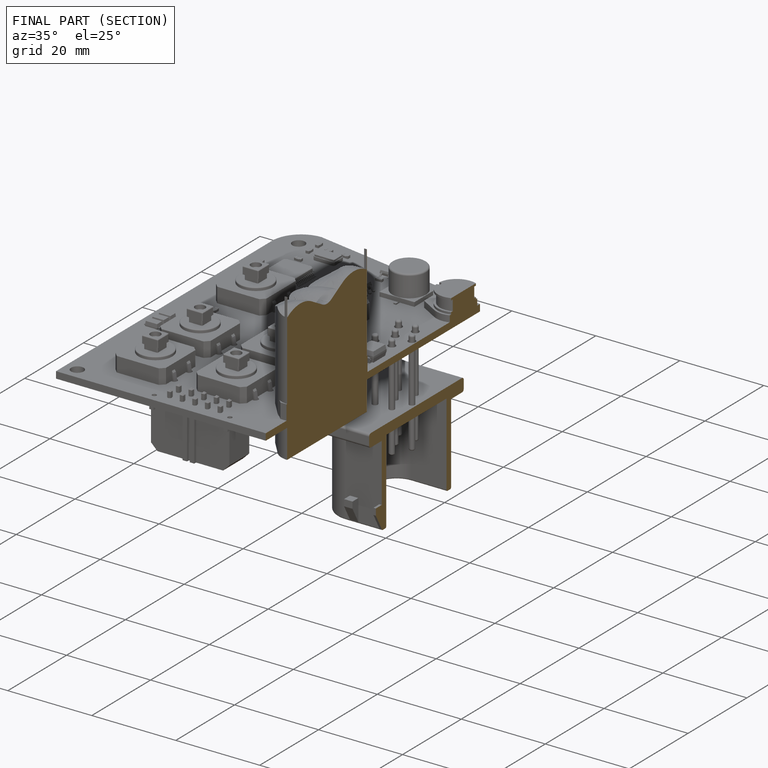
[diagram: finished part — half-section view (interior)]
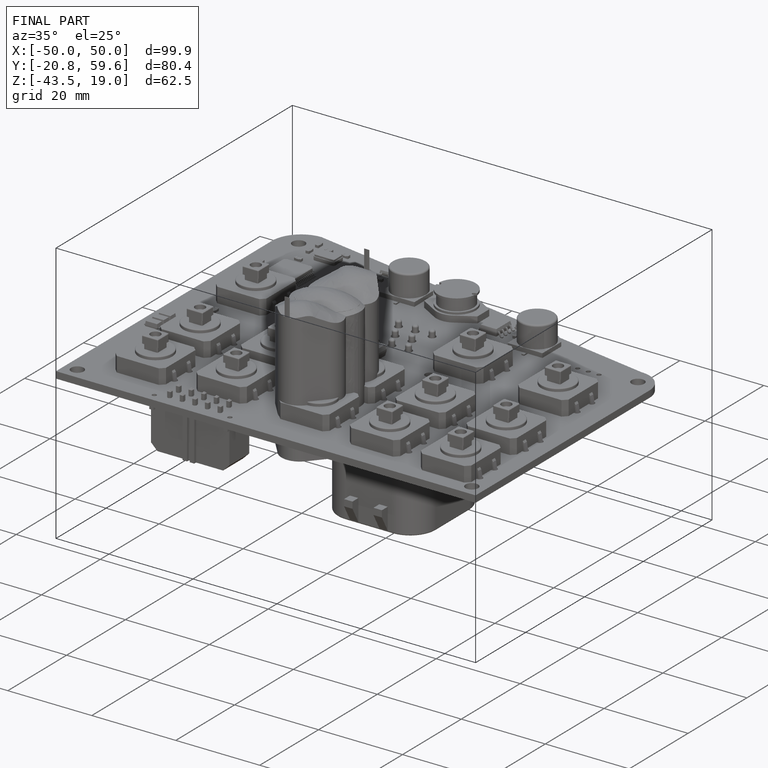
[diagram: finished part — iso view with bounding-box wireframe]
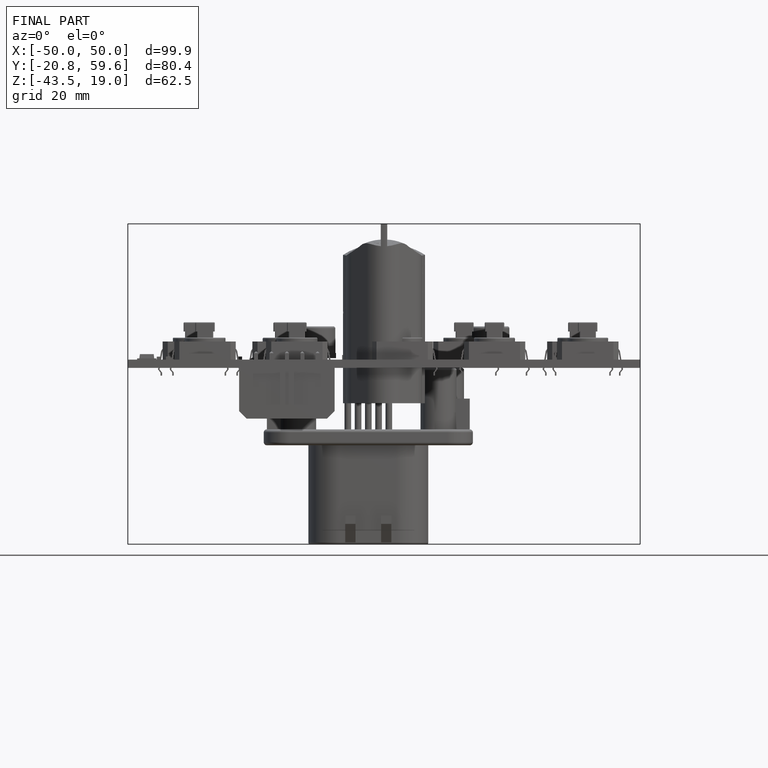
[diagram: finished part — front view with bounding-box wireframe]
